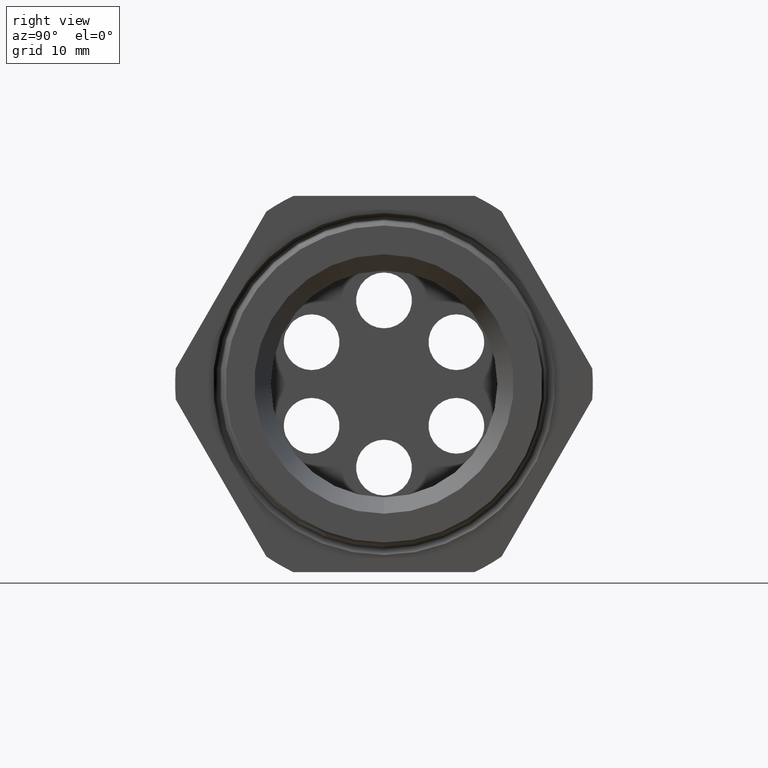
[diagram: clean part render]
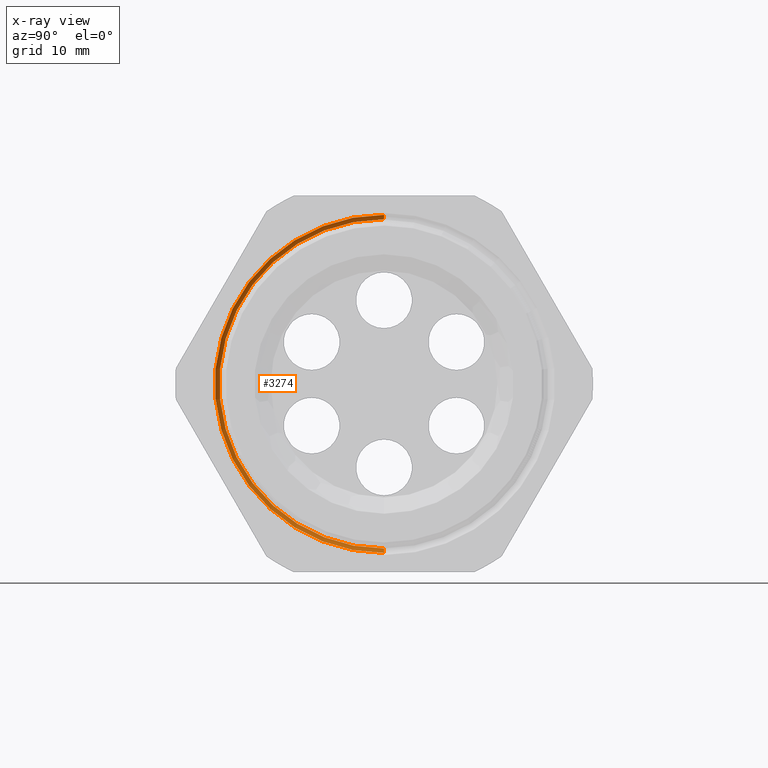
[diagram: x-ray — body ghosted, one internal face saturated and labeled with its STEP entity id]
A machine part, right view, then the same camera in x-ray: the body is ghosted and one INTERNAL B-rep face — a face not visible from any outside direction — is saturated and labeled: STEP entity #3274.
In plain terms, the highlighted conical surface has half-angle 58 deg.
Its self-contained STEP definition (entity closure, byte-faithful):
#1266 = DIRECTION ( 'NONE',  ( 0.0000000000000000000, 0.0000000000000000000, -1.000000000000000000 ) ) ;
#1786 = DIRECTION ( 'NONE',  ( 1.000000000000000000, 0.0000000000000000000, 0.0000000000000000000 ) ) ;
#1787 = AXIS2_PLACEMENT_3D ( 'NONE', #1796, #1786, #1266 ) ;
#1789 = CONICAL_SURFACE ( 'NONE', #1787, 0.9145114984791282700, 1.012290966156726500 ) ;
#1790 = FACE_OUTER_BOUND ( 'NONE', #3277, .T. ) ;
#1796 = CARTESIAN_POINT ( 'NONE',  ( -1.005250323342433900, 0.0000000000000000000, 0.0000000000000000000 ) ) ;
#1879 = DIRECTION ( 'NONE',  ( 0.0000000000000000000, 0.0000000000000000000, -1.000000000000000000 ) ) ;
#1880 = DIRECTION ( 'NONE',  ( 1.000000000000000000, 0.0000000000000000000, 0.0000000000000000000 ) ) ;
#1881 = CARTESIAN_POINT ( 'NONE',  ( -1.005250323342433900, 0.0000000000000000000, 0.0000000000000000000 ) ) ;
#1882 = AXIS2_PLACEMENT_3D ( 'NONE', #1881, #1880, #1879 ) ;
#1883 = CIRCLE ( 'NONE', #1882, 0.9145114984791282700 ) ;
#2644 = CARTESIAN_POINT ( 'NONE',  ( -1.005250323342433900, 1.135560785297213000E-016, -0.9145114984791282700 ) ) ;
#2703 = CARTESIAN_POINT ( 'NONE',  ( -0.9899528718497437900, 1.149934206463624500E-016, -0.9389925383092115900 ) ) ;
#2711 = CARTESIAN_POINT ( 'NONE',  ( -0.9899528718497437900, 0.0000000000000000000, 0.9389925383092115900 ) ) ;
#2712 = CARTESIAN_POINT ( 'NONE',  ( -1.005250323342433900, 0.0000000000000000000, 0.9145114984791282700 ) ) ;
#2718 = DIRECTION ( 'NONE',  ( 0.5299192642331919100, 1.038559386480983700E-016, 0.8480480961564340600 ) ) ;
#2719 = VECTOR ( 'NONE', #2718, 39.37007874015748900 ) ;
#2720 = CARTESIAN_POINT ( 'NONE',  ( -1.005250323342433900, 1.119953579395914000E-016, 0.9145114984791282700 ) ) ;
#2721 = LINE ( 'NONE', #2720, #2719 ) ;
#2723 = DIRECTION ( 'NONE',  ( 0.5299192642331919100, 0.0000000000000000000, -0.8480480961564340600 ) ) ;
#2724 = VECTOR ( 'NONE', #2723, 39.37007874015748900 ) ;
#2725 = CARTESIAN_POINT ( 'NONE',  ( -1.005250323342433900, 0.0000000000000000000, -0.9145114984791282700 ) ) ;
#2726 = LINE ( 'NONE', #2725, #2724 ) ;
#3274 = ADVANCED_FACE ( 'NONE', ( #1790 ), #1789, .T. ) ;
#3277 = EDGE_LOOP ( 'NONE', ( #3876, #3886, #3884, #3885 ) ) ;
#3304 = EDGE_CURVE ( 'NONE', #3795, #3761, #1883, .T. ) ;
#3761 = VERTEX_POINT ( 'NONE', #2644 ) ;
#3789 = EDGE_CURVE ( 'NONE', #3761, #3802, #2726, .T. ) ;
#3791 = EDGE_CURVE ( 'NONE', #3795, #3796, #2721, .T. ) ;
#3795 = VERTEX_POINT ( 'NONE', #2712 ) ;
#3796 = VERTEX_POINT ( 'NONE', #2711 ) ;
#3802 = VERTEX_POINT ( 'NONE', #2703 ) ;
#3876 = ORIENTED_EDGE ( 'NONE', *, *, #3791, .F. ) ;
#3884 = ORIENTED_EDGE ( 'NONE', *, *, #3789, .T. ) ;
#3885 = ORIENTED_EDGE ( 'NONE', *, *, #5254, .F. ) ;
#3886 = ORIENTED_EDGE ( 'NONE', *, *, #3304, .T. ) ;
#5254 = EDGE_CURVE ( 'NONE', #3796, #3802, #6158, .T. ) ;
#6154 = DIRECTION ( 'NONE',  ( 0.0000000000000000000, 0.0000000000000000000, -1.000000000000000000 ) ) ;
#6155 = DIRECTION ( 'NONE',  ( 1.000000000000000000, 0.0000000000000000000, 0.0000000000000000000 ) ) ;
#6156 = CARTESIAN_POINT ( 'NONE',  ( -0.9899528718497437900, 0.0000000000000000000, 0.0000000000000000000 ) ) ;
#6157 = AXIS2_PLACEMENT_3D ( 'NONE', #6156, #6155, #6154 ) ;
#6158 = CIRCLE ( 'NONE', #6157, 0.9389925383092115900 ) ;